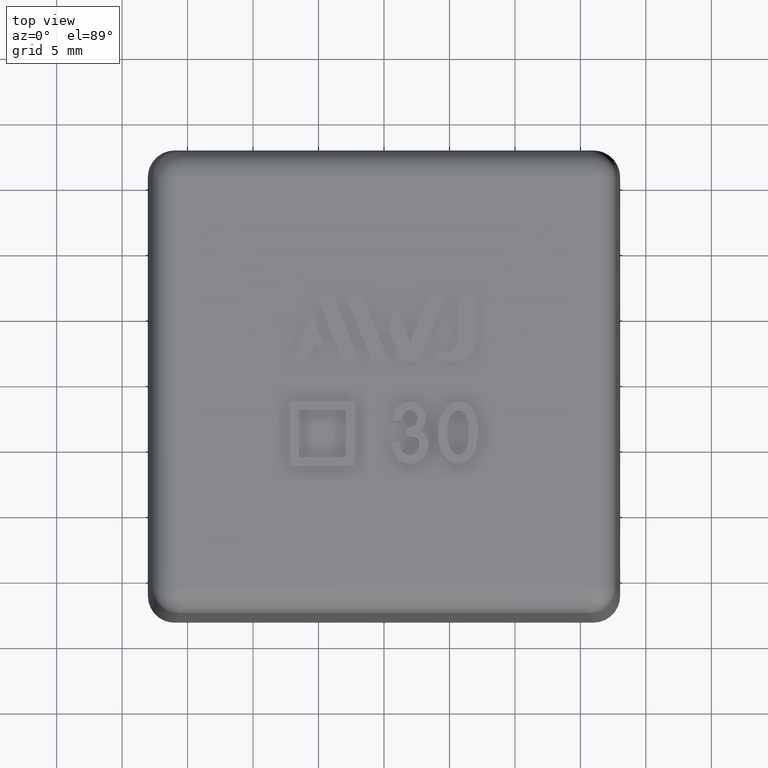
[diagram: clean part render]
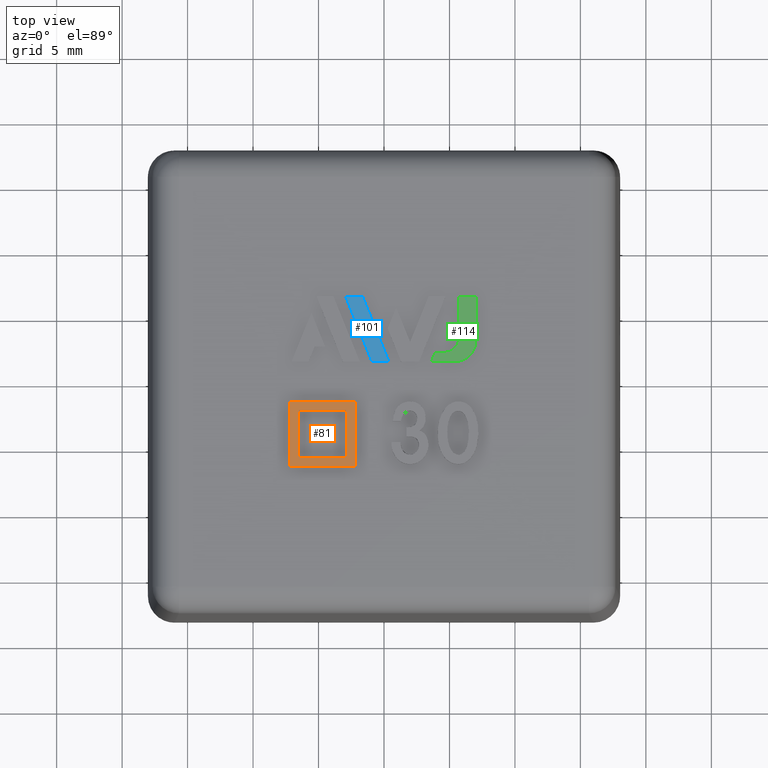
[diagram: same view with three faces highlighted in distinct colors, each labeled with its STEP entity id]
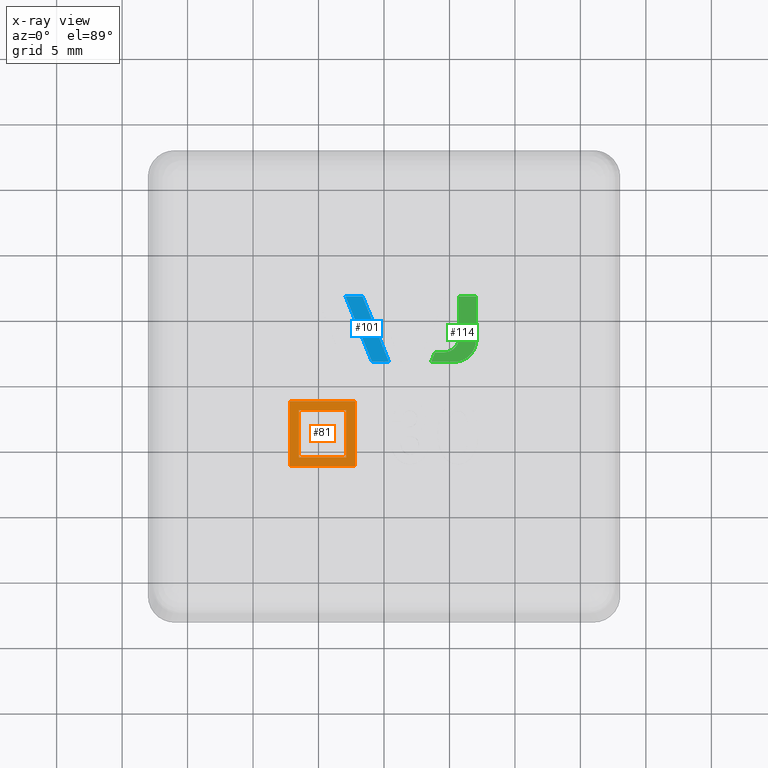
[diagram: x-ray of the same camera — body ghosted, the three highlighted faces saturated]
A machine part, top view with three faces highlighted in distinct colors.
The next image is the same camera in x-ray (body ghosted, the three faces saturated) — at least one of them is partly hidden behind the body in this view.
Their STEP definitions:

[orange] entity #81 — the highlighted planar face has unit normal (0, 0, 1).
#81 = ADVANCED_FACE( '', ( #175, #176 ), #177, .T. );
#175 = FACE_OUTER_BOUND( '', #349, .T. );
#176 = FACE_BOUND( '', #350, .T. );
#177 = PLANE( '', #351 );
#349 = EDGE_LOOP( '', ( #604, #605, #606, #607 ) );
#350 = EDGE_LOOP( '', ( #608, #609, #610, #611 ) );
#351 = AXIS2_PLACEMENT_3D( '', #612, #613, #614 );
#604 = ORIENTED_EDGE( '', *, *, #1234, .F. );
#605 = ORIENTED_EDGE( '', *, *, #1235, .F. );
#606 = ORIENTED_EDGE( '', *, *, #1236, .F. );
#607 = ORIENTED_EDGE( '', *, *, #1237, .F. );
#608 = ORIENTED_EDGE( '', *, *, #1238, .F. );
#609 = ORIENTED_EDGE( '', *, *, #1239, .F. );
#610 = ORIENTED_EDGE( '', *, *, #1240, .F. );
#611 = ORIENTED_EDGE( '', *, *, #1241, .F. );
#612 = CARTESIAN_POINT( '', ( -7.18575710227276, -3.99950000000001, 22.7860000000000 ) );
#613 = DIRECTION( '', ( 0.000000000000000, 0.000000000000000, 1.00000000000000 ) );
#614 = DIRECTION( '', ( 0.000000000000000, -1.00000000000000, 0.000000000000000 ) );
#1234 = EDGE_CURVE( '', #1475, #1476, #1477, .T. );
#1235 = EDGE_CURVE( '', #1478, #1475, #1479, .T. );
#1236 = EDGE_CURVE( '', #1480, #1478, #1481, .T. );
#1237 = EDGE_CURVE( '', #1476, #1480, #1482, .T. );
#1238 = EDGE_CURVE( '', #1483, #1484, #1485, .T. );
#1239 = EDGE_CURVE( '', #1486, #1483, #1487, .T. );
#1240 = EDGE_CURVE( '', #1488, #1486, #1489, .T. );
#1241 = EDGE_CURVE( '', #1484, #1488, #1490, .T. );
#1475 = VERTEX_POINT( '', #1915 );
#1476 = VERTEX_POINT( '', #1916 );
#1477 = B_SPLINE_CURVE_WITH_KNOTS( '', 2, ( #1917, #1918, #1919 ), .UNSPECIFIED., .F., .F., ( 3, 3 ), ( 0.000000000000000, 1.00000000000000 ), .UNSPECIFIED. );
#1478 = VERTEX_POINT( '', #1920 );
#1479 = B_SPLINE_CURVE_WITH_KNOTS( '', 2, ( #1921, #1922, #1923 ), .UNSPECIFIED., .F., .F., ( 3, 3 ), ( 3.00000000000000, 4.00000000000000 ), .UNSPECIFIED. );
#1480 = VERTEX_POINT( '', #1924 );
#1481 = B_SPLINE_CURVE_WITH_KNOTS( '', 2, ( #1925, #1926, #1927 ), .UNSPECIFIED., .F., .F., ( 3, 3 ), ( 2.00000000000000, 3.00000000000000 ), .UNSPECIFIED. );
#1482 = B_SPLINE_CURVE_WITH_KNOTS( '', 2, ( #1928, #1929, #1930 ), .UNSPECIFIED., .F., .F., ( 3, 3 ), ( 1.00000000000000, 2.00000000000000 ), .UNSPECIFIED. );
#1483 = VERTEX_POINT( '', #1931 );
#1484 = VERTEX_POINT( '', #1932 );
#1485 = B_SPLINE_CURVE_WITH_KNOTS( '', 2, ( #1933, #1934, #1935 ), .UNSPECIFIED., .F., .F., ( 3, 3 ), ( 0.000000000000000, 1.00000000000000 ), .UNSPECIFIED. );
#1486 = VERTEX_POINT( '', #1936 );
#1487 = B_SPLINE_CURVE_WITH_KNOTS( '', 2, ( #1937, #1938, #1939 ), .UNSPECIFIED., .F., .F., ( 3, 3 ), ( 3.00000000000000, 4.00000000000000 ), .UNSPECIFIED. );
#1488 = VERTEX_POINT( '', #1940 );
#1489 = B_SPLINE_CURVE_WITH_KNOTS( '', 2, ( #1941, #1942, #1943 ), .UNSPECIFIED., .F., .F., ( 3, 3 ), ( 2.00000000000000, 3.00000000000000 ), .UNSPECIFIED. );
#1490 = B_SPLINE_CURVE_WITH_KNOTS( '', 2, ( #1944, #1945, #1946 ), .UNSPECIFIED., .F., .F., ( 3, 3 ), ( 1.00000000000000, 2.00000000000000 ), .UNSPECIFIED. );
#1915 = CARTESIAN_POINT( '', ( -7.18575710227276, -6.47677272727274, 22.7860000000000 ) );
#1916 = CARTESIAN_POINT( '', ( -7.18575710227276, -1.52222727272729, 22.7860000000000 ) );
#1917 = CARTESIAN_POINT( '', ( -7.18575710227276, -6.47677272727274, 22.7860000000000 ) );
#1918 = CARTESIAN_POINT( '', ( -7.18575710227276, -3.99950000000001, 22.7860000000000 ) );
#1919 = CARTESIAN_POINT( '', ( -7.18575710227276, -1.52222727272729, 22.7860000000000 ) );
#1920 = CARTESIAN_POINT( '', ( -2.20848437500004, -6.47677272727274, 22.7860000000000 ) );
#1921 = CARTESIAN_POINT( '', ( -2.20848437500004, -6.47677272727274, 22.7860000000000 ) );
#1922 = CARTESIAN_POINT( '', ( -4.69712073863640, -6.47677272727274, 22.7860000000000 ) );
#1923 = CARTESIAN_POINT( '', ( -7.18575710227276, -6.47677272727274, 22.7860000000000 ) );
#1924 = CARTESIAN_POINT( '', ( -2.20848437500004, -1.52222727272729, 22.7860000000000 ) );
#1925 = CARTESIAN_POINT( '', ( -2.20848437500004, -1.52222727272729, 22.7860000000000 ) );
#1926 = CARTESIAN_POINT( '', ( -2.20848437500004, -3.99950000000001, 22.7860000000000 ) );
#1927 = CARTESIAN_POINT( '', ( -2.20848437500004, -6.47677272727274, 22.7860000000000 ) );
#1928 = CARTESIAN_POINT( '', ( -7.18575710227276, -1.52222727272729, 22.7860000000000 ) );
#1929 = CARTESIAN_POINT( '', ( -4.69712073863640, -1.52222727272729, 22.7860000000000 ) );
#1930 = CARTESIAN_POINT( '', ( -2.20848437500004, -1.52222727272729, 22.7860000000000 ) );
#1931 = CARTESIAN_POINT( '', ( -6.50393892045458, -5.79495454545456, 22.7860000000000 ) );
#1932 = CARTESIAN_POINT( '', ( -2.89030255681822, -5.79495454545456, 22.7860000000000 ) );
#1933 = CARTESIAN_POINT( '', ( -6.50393892045458, -5.79495454545456, 22.7860000000000 ) );
#1934 = CARTESIAN_POINT( '', ( -4.69712073863640, -5.79495454545456, 22.7860000000000 ) );
#1935 = CARTESIAN_POINT( '', ( -2.89030255681822, -5.79495454545456, 22.7860000000000 ) );
#1936 = CARTESIAN_POINT( '', ( -6.50393892045458, -2.18131818181819, 22.7860000000000 ) );
#1937 = CARTESIAN_POINT( '', ( -6.50393892045458, -2.18131818181819, 22.7860000000000 ) );
#1938 = CARTESIAN_POINT( '', ( -6.50393892045458, -3.98813636363638, 22.7860000000000 ) );
#1939 = CARTESIAN_POINT( '', ( -6.50393892045458, -5.79495454545456, 22.7860000000000 ) );
#1940 = CARTESIAN_POINT( '', ( -2.89030255681822, -2.18131818181819, 22.7860000000000 ) );
#1941 = CARTESIAN_POINT( '', ( -2.89030255681822, -2.18131818181819, 22.7860000000000 ) );
#1942 = CARTESIAN_POINT( '', ( -4.69712073863640, -2.18131818181819, 22.7860000000000 ) );
#1943 = CARTESIAN_POINT( '', ( -6.50393892045458, -2.18131818181819, 22.7860000000000 ) );
#1944 = CARTESIAN_POINT( '', ( -2.89030255681822, -5.79495454545456, 22.7860000000000 ) );
#1945 = CARTESIAN_POINT( '', ( -2.89030255681822, -3.98813636363638, 22.7860000000000 ) );
#1946 = CARTESIAN_POINT( '', ( -2.89030255681822, -2.18131818181819, 22.7860000000000 ) );

[blue] entity #101 — the highlighted planar face has unit normal (0, 0, 1).
#101 = ADVANCED_FACE( '', ( #216 ), #217, .T. );
#216 = FACE_OUTER_BOUND( '', #390, .T. );
#217 = PLANE( '', #391 );
#390 = EDGE_LOOP( '', ( #749, #750, #751, #752 ) );
#391 = AXIS2_PLACEMENT_3D( '', #753, #754, #755 );
#749 = ORIENTED_EDGE( '', *, *, #1268, .T. );
#750 = ORIENTED_EDGE( '', *, *, #1269, .T. );
#751 = ORIENTED_EDGE( '', *, *, #1270, .T. );
#752 = ORIENTED_EDGE( '', *, *, #1271, .T. );
#753 = CARTESIAN_POINT( '', ( 176.545192040989, 67.2575999431423, 22.4527500000000 ) );
#754 = DIRECTION( '', ( 0.000000000000000, 6.12303176911189E-017, 1.00000000000000 ) );
#755 = DIRECTION( '', ( -1.00000000000000, 0.000000000000000, 0.000000000000000 ) );
#1268 = EDGE_CURVE( '', #1526, #1527, #1528, .T. );
#1269 = EDGE_CURVE( '', #1527, #1529, #1530, .T. );
#1270 = EDGE_CURVE( '', #1529, #1531, #1532, .T. );
#1271 = EDGE_CURVE( '', #1531, #1526, #1533, .T. );
#1526 = VERTEX_POINT( '', #2008 );
#1527 = VERTEX_POINT( '', #2009 );
#1528 = LINE( '', #2010, #2011 );
#1529 = VERTEX_POINT( '', #2012 );
#1530 = LINE( '', #2013, #2014 );
#1531 = VERTEX_POINT( '', #2015 );
#1532 = LINE( '', #2016, #2017 );
#1533 = LINE( '', #2018, #2019 );
#2008 = CARTESIAN_POINT( '', ( -0.913196900973782, 1.49799937499999, 22.4527500000000 ) );
#2009 = CARTESIAN_POINT( '', ( 0.379183399576218, 1.49799937499999, 22.4527500000000 ) );
#2010 = CARTESIAN_POINT( '', ( -0.913196900973782, 1.49799937499999, 22.4527500000000 ) );
#2011 = VECTOR( '', #2352, 1000.00000000000 );
#2012 = CARTESIAN_POINT( '', ( -1.64170541903003, 6.49933918853000, 22.4527500000000 ) );
#2013 = CARTESIAN_POINT( '', ( 0.379183399576218, 1.49799937499999, 22.4527500000000 ) );
#2014 = VECTOR( '', #2353, 1000.00000000000 );
#2015 = CARTESIAN_POINT( '', ( -2.93408516346878, 6.49933918853000, 22.4527500000000 ) );
#2016 = CARTESIAN_POINT( '', ( -1.64170541903003, 6.49933918853000, 22.4527500000000 ) );
#2017 = VECTOR( '', #2354, 1000.00000000000 );
#2018 = CARTESIAN_POINT( '', ( -2.93408516346878, 6.49933918853000, 22.4527500000000 ) );
#2019 = VECTOR( '', #2355, 1000.00000000000 );
#2352 = DIRECTION( '', ( 1.00000000000000, 0.000000000000000, 0.000000000000000 ) );
#2353 = DIRECTION( '', ( -0.374641075834904, 0.927169922019295, -5.67709088788913E-017 ) );
#2354 = DIRECTION( '', ( -1.00000000000000, 0.000000000000000, 0.000000000000000 ) );
#2355 = DIRECTION( '', ( 0.374640987210496, -0.927169957829709, 5.67709110715744E-017 ) );

[green] entity #114 — the highlighted planar face has unit normal (0, 0, 1).
#114 = ADVANCED_FACE( '', ( #242 ), #243, .T. );
#242 = FACE_OUTER_BOUND( '', #416, .T. );
#243 = PLANE( '', #417 );
#416 = EDGE_LOOP( '', ( #843, #844, #845, #846, #847, #848, #849, #850 ) );
#417 = AXIS2_PLACEMENT_3D( '', #851, #852, #853 );
#843 = ORIENTED_EDGE( '', *, *, #1290, .T. );
#844 = ORIENTED_EDGE( '', *, *, #1291, .T. );
#845 = ORIENTED_EDGE( '', *, *, #1292, .T. );
#846 = ORIENTED_EDGE( '', *, *, #1293, .T. );
#847 = ORIENTED_EDGE( '', *, *, #1294, .T. );
#848 = ORIENTED_EDGE( '', *, *, #1295, .T. );
#849 = ORIENTED_EDGE( '', *, *, #1296, .T. );
#850 = ORIENTED_EDGE( '', *, *, #1297, .T. );
#851 = CARTESIAN_POINT( '', ( 176.545192040989, 67.2575999431423, 22.4527500000000 ) );
#852 = DIRECTION( '', ( 0.000000000000000, 6.12303176911189E-017, 1.00000000000000 ) );
#853 = DIRECTION( '', ( -1.00000000000000, 0.000000000000000, 0.000000000000000 ) );
#1290 = EDGE_CURVE( '', #1559, #1560, #1561, .T. );
#1291 = EDGE_CURVE( '', #1560, #1562, #1563, .T. );
#1292 = EDGE_CURVE( '', #1562, #1564, #1565, .F. );
#1293 = EDGE_CURVE( '', #1564, #1566, #1567, .T. );
#1294 = EDGE_CURVE( '', #1566, #1568, #1569, .T. );
#1295 = EDGE_CURVE( '', #1568, #1570, #1571, .T. );
#1296 = EDGE_CURVE( '', #1570, #1572, #1573, .T. );
#1297 = EDGE_CURVE( '', #1572, #1559, #1574, .T. );
#1559 = VERTEX_POINT( '', #2063 );
#1560 = VERTEX_POINT( '', #2064 );
#1561 = LINE( '', #2065, #2066 );
#1562 = VERTEX_POINT( '', #2067 );
#1563 = LINE( '', #2068, #2069 );
#1564 = VERTEX_POINT( '', #2070 );
#1565 = CIRCLE( '', #2071, 1.11222250000000 );
#1566 = VERTEX_POINT( '', #2072 );
#1567 = LINE( '', #2073, #2074 );
#1568 = VERTEX_POINT( '', #2075 );
#1569 = LINE( '', #2076, #2077 );
#1570 = VERTEX_POINT( '', #2078 );
#1571 = LINE( '', #2079, #2080 );
#1572 = VERTEX_POINT( '', #2081 );
#1573 = CIRCLE( '', #2082, 1.66833375000000 );
#1574 = LINE( '', #2083, #2084 );
#2063 = CARTESIAN_POINT( '', ( 7.02871739418747, 6.49933918853000, 22.4527500000000 ) );
#2064 = CARTESIAN_POINT( '', ( 5.72166354219496, 6.49933918853000, 22.4527500000000 ) );
#2065 = CARTESIAN_POINT( '', ( 7.02871739418747, 6.49933918853000, 22.4527500000000 ) );
#2066 = VECTOR( '', #2374, 1000.00000000000 );
#2067 = CARTESIAN_POINT( '', ( 5.72166354219496, 3.33751139719625, 22.4527500000000 ) );
#2068 = CARTESIAN_POINT( '', ( 5.72166354219496, 6.49933918853000, 22.4527500000000 ) );
#2069 = VECTOR( '', #2375, 1000.00000000000 );
#2070 = CARTESIAN_POINT( '', ( 4.60944104219496, 2.22528889719625, 22.4527500000000 ) );
#2071 = AXIS2_PLACEMENT_3D( '', #2376, #2377, #2378 );
#2072 = CARTESIAN_POINT( '', ( 3.89903839421621, 2.22528889719625, 22.4527500000000 ) );
#2073 = CARTESIAN_POINT( '', ( 4.60944104219496, 2.22528889719625, 22.4527500000000 ) );
#2074 = VECTOR( '', #2379, 1000.00000000000 );
#2075 = CARTESIAN_POINT( '', ( 3.60519477082872, 1.49799937499999, 22.4527500000000 ) );
#2076 = CARTESIAN_POINT( '', ( 3.89903839421621, 2.22528889719625, 22.4527500000000 ) );
#2077 = VECTOR( '', #2380, 1000.00000000000 );
#2078 = CARTESIAN_POINT( '', ( 5.36038364418746, 1.49799937499999, 22.4527500000000 ) );
#2079 = CARTESIAN_POINT( '', ( 3.60519477082872, 1.49799937499999, 22.4527500000000 ) );
#2080 = VECTOR( '', #2381, 1000.00000000000 );
#2081 = CARTESIAN_POINT( '', ( 7.02871739418747, 3.16633312499999, 22.4527500000000 ) );
#2082 = AXIS2_PLACEMENT_3D( '', #2382, #2383, #2384 );
#2083 = CARTESIAN_POINT( '', ( 7.02871739418747, 3.16633312499999, 22.4527500000000 ) );
#2084 = VECTOR( '', #2385, 1000.00000000000 );
#2374 = DIRECTION( '', ( -1.00000000000000, -1.66533453693774E-016, 1.01968962758690E-032 ) );
#2375 = DIRECTION( '', ( -2.22044604925031E-016, -1.00000000000000, 6.12303176911189E-017 ) );
#2376 = CARTESIAN_POINT( '', ( 4.60944104219496, 3.33751139719625, 22.4527500000000 ) );
#2377 = DIRECTION( '', ( 0.000000000000000, 6.12303176911189E-017, 1.00000000000000 ) );
#2378 = DIRECTION( '', ( 0.000000000000000, -1.00000000000000, 6.12303176911189E-017 ) );
#2379 = DIRECTION( '', ( -1.00000000000000, -2.77555756156289E-016, 1.69948271264483E-032 ) );
#2380 = DIRECTION( '', ( -0.374606136016172, -0.927184039368147, 5.67717732886465E-017 ) );
#2381 = DIRECTION( '', ( 1.00000000000000, 2.22044604925031E-016, -1.35958617011586E-032 ) );
#2382 = CARTESIAN_POINT( '', ( 5.36038364418747, 3.16633312499999, 22.4527500000000 ) );
#2383 = DIRECTION( '', ( 0.000000000000000, 6.12303176911189E-017, 1.00000000000000 ) );
#2384 = DIRECTION( '', ( 0.000000000000000, -1.00000000000000, 6.12303176911189E-017 ) );
#2385 = DIRECTION( '', ( 2.22044604925031E-016, 1.00000000000000, -6.12303176911189E-017 ) );